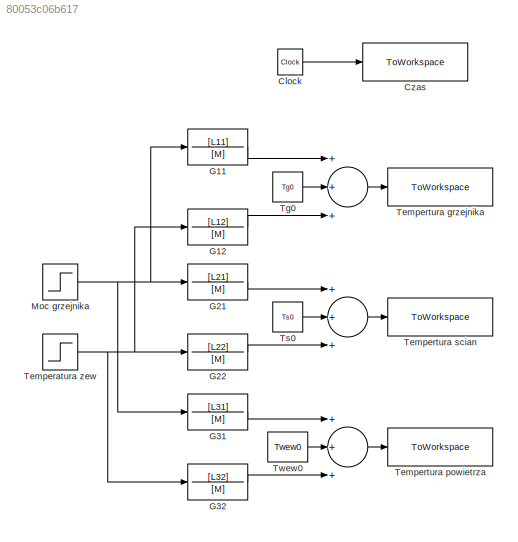
MODEL slx_80053c06b617
KIND model
CONFIG AbsTol = auto
CONFIG FixedStep = auto
CONFIG MaxStep = tmax
CONFIG MinStep = auto
CONFIG RelTol = 1e-3
CONFIG SampleTimeConstraint = Unconstrained
CONFIG Solver = ode45
CONFIG SolverMode = Auto
CONFIG SolverName = ode45
CONFIG StartTime = 0.0
CONFIG StopTime = czas_sym
BLOCK [Sum]  
  InputSameDT = off
  Inputs = +++
  OutDataTypeStr = Inherit: Inherit via internal rule
  Ports = [3, 1]
  SaturateOnIntegerOverflow = off
BLOCK [Sum]    
  InputSameDT = off
  Inputs = +++
  OutDataTypeStr = Inherit: Inherit via internal rule
  Ports = [3, 1]
  SaturateOnIntegerOverflow = off
BLOCK [Clock] Clock
  DisplayTime = on
BLOCK [ToWorkspace] Czas
  MaxDataPoints = inf
  Ports = [1]
  SampleTime = -1
  Save2DSignal = 2-D array (concatenate along first dimension)
  VariableName = t
BLOCK [TransferFcn] G11
  Denominator = [M]
  Numerator = [L11]
BLOCK [TransferFcn] G12
  Denominator = [M]
  Numerator = [L12]
BLOCK [TransferFcn] G21
  Denominator = [M]
  Numerator = [L21]
BLOCK [TransferFcn] G22
  Denominator = [M]
  Numerator = [L22]
BLOCK [TransferFcn] G31
  Denominator = [M]
  Numerator = [L31]
BLOCK [TransferFcn] G32
  Denominator = [M]
  Numerator = [L32]
BLOCK [Step] Moc grzejnika
  After = dQg
  SampleTime = 0
  Time = t0
BLOCK [Step] Temperatura zew
  After = dTzew
  SampleTime = 0
  Time = t0
BLOCK [ToWorkspace] Tempertura grzejnika
  MaxDataPoints = inf
  Ports = [1]
  SampleTime = -1
  Save2DSignal = 2-D array (concatenate along first dimension)
  VariableName = Tg
BLOCK [ToWorkspace] Tempertura powietrza
  MaxDataPoints = inf
  Ports = [1]
  SampleTime = -1
  Save2DSignal = 2-D array (concatenate along first dimension)
  VariableName = Twew
BLOCK [ToWorkspace] Tempertura scian
  MaxDataPoints = inf
  Ports = [1]
  SampleTime = -1
  Save2DSignal = 2-D array (concatenate along first dimension)
  VariableName = Ts
BLOCK [Constant] Tg0
  Value = Tg0
BLOCK [Constant] Ts0
  Value = Ts0
BLOCK [Constant] Twew0
  Value = Twew0
LINE    :1 -> Tempertura scian:1
NET  :1 -> Tempertura grzejnika:1, Tempertura powietrza:1
LINE Clock:1 -> Czas:1
LINE G11:1 ->  :1
LINE G12:1 ->  :3
LINE G21:1 ->    :1
LINE G22:1 ->    :3
LINE G31:1 ->  :1
LINE G32:1 ->  :3
NET Moc grzejnika:1 -> G11:1, G21:1, G31:1
NET Temperatura zew:1 -> G12:1, G22:1, G32:1
LINE Tg0:1 ->  :2
LINE Ts0:1 ->    :2
LINE Twew0:1 ->  :2
note: NET lines group one-source signal fan-out (src -> all destinations, sorted); 1:1 wires keep LINE
